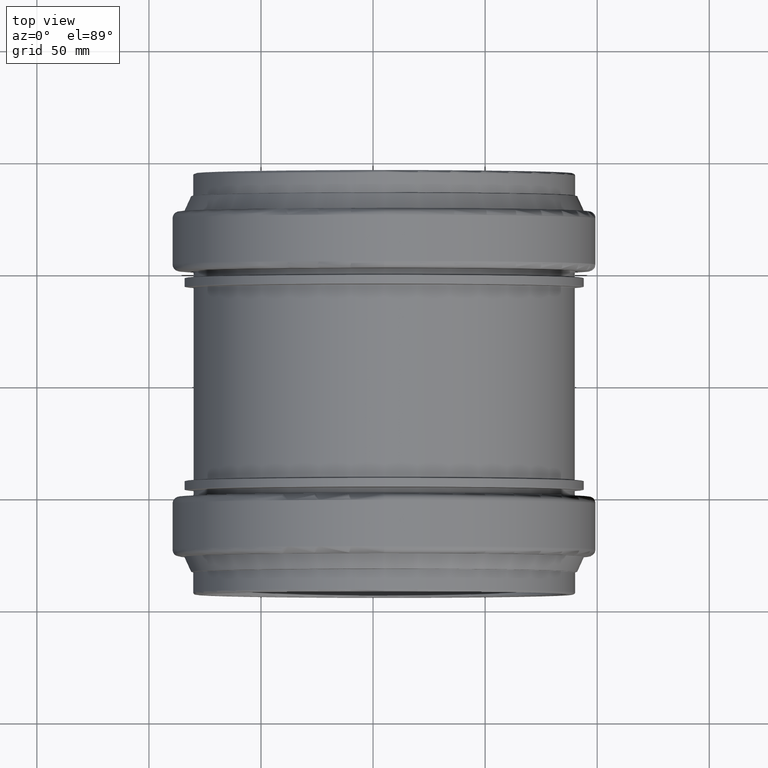
[diagram: clean part render]
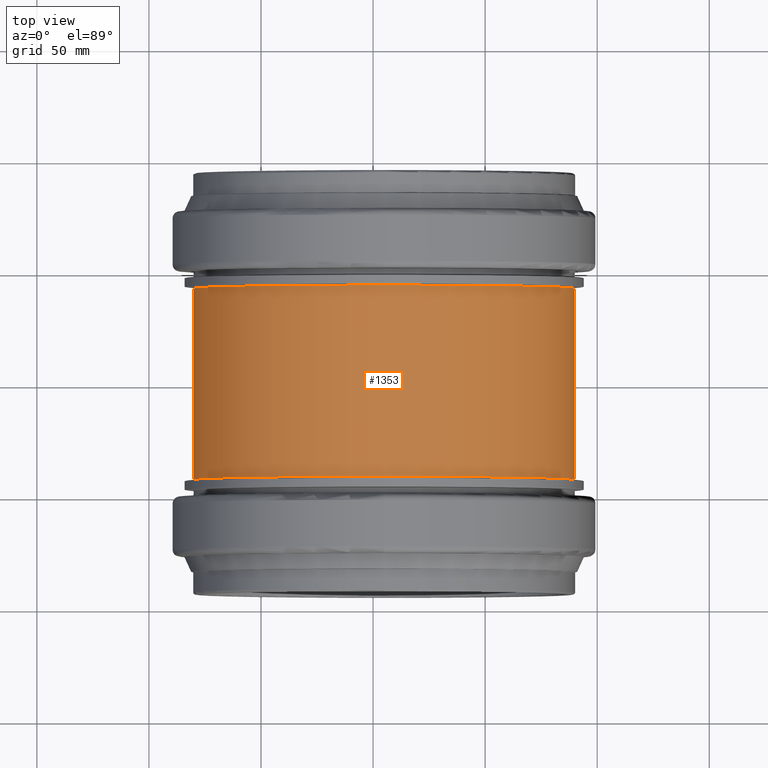
[diagram: same view with one face highlighted and labeled with its STEP entity id]
A machine part, top view. The second image highlights one B-rep face of the part: STEP entity #1353.
In plain terms, the highlighted cylindrical surface (bore or boss wall) has radius 85.05 mm, axis along (0, -1, 0).
Its self-contained STEP definition (entity closure, byte-faithful):
#49=LINE('',#2481,#79);
#79=VECTOR('',#2053,85.05);
#99=CYLINDRICAL_SURFACE('',#1588,85.05);
#184=FACE_OUTER_BOUND('',#269,.T.);
#269=EDGE_LOOP('',(#1091,#1092,#1093,#1094,#1095,#1096));
#335=CIRCLE('',#1464,85.05);
#337=CIRCLE('',#1466,85.05);
#419=CIRCLE('',#1585,85.05);
#420=CIRCLE('',#1586,85.05);
#492=VERTEX_POINT('',#2274);
#493=VERTEX_POINT('',#2275);
#558=VERTEX_POINT('',#2475);
#559=VERTEX_POINT('',#2476);
#642=EDGE_CURVE('',#492,#493,#335,.T.);
#644=EDGE_CURVE('',#493,#492,#337,.T.);
#740=EDGE_CURVE('',#558,#559,#419,.T.);
#741=EDGE_CURVE('',#559,#558,#420,.T.);
#743=EDGE_CURVE('',#492,#558,#49,.T.);
#1091=ORIENTED_EDGE('',*,*,#642,.F.);
#1092=ORIENTED_EDGE('',*,*,#743,.T.);
#1093=ORIENTED_EDGE('',*,*,#740,.T.);
#1094=ORIENTED_EDGE('',*,*,#741,.T.);
#1095=ORIENTED_EDGE('',*,*,#743,.F.);
#1096=ORIENTED_EDGE('',*,*,#644,.F.);
#1353=ADVANCED_FACE('',(#184),#99,.T.);
#1464=AXIS2_PLACEMENT_3D('',#2276,#1789,#1790);
#1466=AXIS2_PLACEMENT_3D('',#2278,#1793,#1794);
#1585=AXIS2_PLACEMENT_3D('',#2477,#2045,#2046);
#1586=AXIS2_PLACEMENT_3D('',#2478,#2047,#2048);
#1588=AXIS2_PLACEMENT_3D('',#2480,#2051,#2052);
#1789=DIRECTION('center_axis',(0.,-1.,0.));
#1790=DIRECTION('ref_axis',(1.,0.,0.));
#1793=DIRECTION('center_axis',(0.,-1.,0.));
#1794=DIRECTION('ref_axis',(1.,0.,0.));
#2045=DIRECTION('center_axis',(0.,-1.,0.));
#2046=DIRECTION('ref_axis',(1.,0.,0.));
#2047=DIRECTION('center_axis',(0.,-1.,0.));
#2048=DIRECTION('ref_axis',(1.,0.,0.));
#2051=DIRECTION('center_axis',(0.,-1.,0.));
#2052=DIRECTION('ref_axis',(1.,0.,0.));
#2053=DIRECTION('',(0.,1.,0.));
#2274=CARTESIAN_POINT('',(-80.0957284373839,-42.6751459936911,-1.04156210267482E-14));
#2275=CARTESIAN_POINT('',(4.9542715626161,-42.6751459936911,85.05));
#2276=CARTESIAN_POINT('Origin',(4.95427156261609,-42.6751459936911,0.));
#2278=CARTESIAN_POINT('Origin',(4.95427156261609,-42.6751459936911,0.));
#2475=CARTESIAN_POINT('',(-80.0957284373839,42.6751459936911,-1.04156210267482E-14));
#2476=CARTESIAN_POINT('',(4.95427156261608,42.6751459936911,85.05));
#2477=CARTESIAN_POINT('Origin',(4.95427156261609,42.6751459936911,0.));
#2478=CARTESIAN_POINT('Origin',(4.95427156261609,42.6751459936911,0.));
#2480=CARTESIAN_POINT('Origin',(4.95427156261609,21.3375729968455,0.));
#2481=CARTESIAN_POINT('',(-80.0957284373839,21.3375729968455,-1.04156210267482E-14));